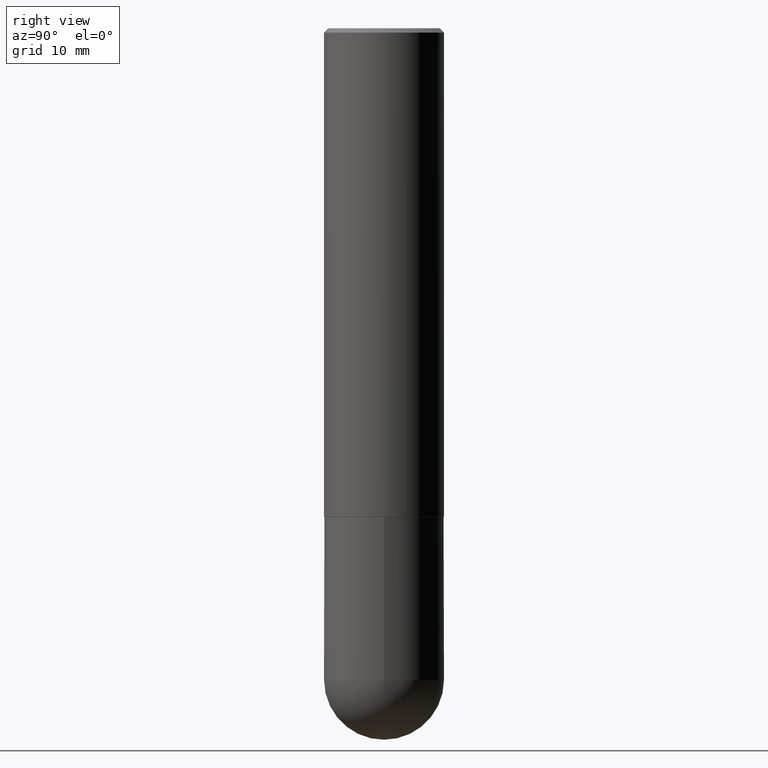
[diagram: clean part render]
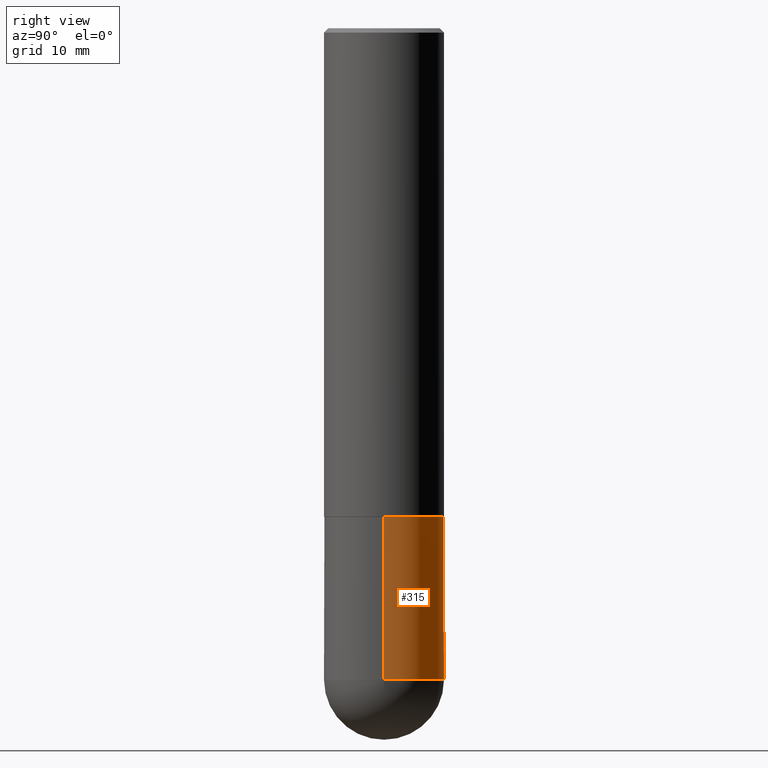
[diagram: same view with one face highlighted and labeled with its STEP entity id]
A machine part, right view. The second image highlights one B-rep face of the part: STEP entity #315.
In plain terms, the highlighted cylindrical surface (partial cylindrical patch) has radius 7.0002 mm, axis along (-0, 0, 1).
Its self-contained STEP definition (entity closure, byte-faithful):
#3 = EDGE_CURVE ( 'NONE', #207, #375, #410, .T. ) ;
#11 = DIRECTION ( 'NONE',  ( 1.000000000000000000, -6.982962677686264344E-15, 0.000000000000000000 ) ) ;
#15 = VERTEX_POINT ( 'NONE', #307 ) ;
#17 = DIRECTION ( 'NONE',  ( -2.445468806185136877E-29, 3.491481338843145188E-15, 1.000000000000000000 ) ) ;
#19 = CIRCLE ( 'NONE', #166, 0.2756000000000000116 ) ;
#22 = DIRECTION ( 'NONE',  ( -2.445468806185136877E-29, 3.491481338843145188E-15, 1.000000000000000000 ) ) ;
#33 = CIRCLE ( 'NONE', #176, 0.2756000000000000671 ) ;
#46 = ORIENTED_EDGE ( 'NONE', *, *, #327, .T. ) ;
#47 = CARTESIAN_POINT ( 'NONE',  ( -0.2756000000000000671, 1.958255779754836589E-15, -1.355658510874252287E-29 ) ) ;
#49 = VECTOR ( 'NONE', #17, 39.37007874015748143 ) ;
#77 = VECTOR ( 'NONE', #22, 39.37007874015748143 ) ;
#80 = ORIENTED_EDGE ( 'NONE', *, *, #182, .F. ) ;
#82 = ORIENTED_EDGE ( 'NONE', *, *, #3, .F. ) ;
#86 = DIRECTION ( 'NONE',  ( -2.445468806185136597E-29, 3.491481338843145583E-15, 1.000000000000000000 ) ) ;
#93 = EDGE_CURVE ( 'NONE', #207, #203, #136, .T. ) ;
#95 = AXIS2_PLACEMENT_3D ( 'NONE', #366, #86, #209 ) ;
#110 = AXIS2_PLACEMENT_3D ( 'NONE', #252, #221, #311 ) ;
#118 = ORIENTED_EDGE ( 'NONE', *, *, #93, .T. ) ;
#136 = CIRCLE ( 'NONE', #110, 0.2756000000000000671 ) ;
#138 = VERTEX_POINT ( 'NONE', #229 ) ;
#166 = AXIS2_PLACEMENT_3D ( 'NONE', #260, #387, #325 ) ;
#175 = LINE ( 'NONE', #47, #77 ) ;
#176 = AXIS2_PLACEMENT_3D ( 'NONE', #189, #270, #11 ) ;
#182 = EDGE_CURVE ( 'NONE', #375, #138, #19, .T. ) ;
#189 = CARTESIAN_POINT ( 'NONE',  ( 7.317087214986547114E-29, -1.044686131395257581E-14, -2.992100000000000204 ) ) ;
#203 = VERTEX_POINT ( 'NONE', #258 ) ;
#207 = VERTEX_POINT ( 'NONE', #257 ) ;
#209 = DIRECTION ( 'NONE',  ( 1.000000000000000000, -6.982962677686267499E-15, 4.876176775795935793E-29 ) ) ;
#221 = DIRECTION ( 'NONE',  ( -2.445468806185136597E-29, 3.491481338843145583E-15, 1.000000000000000000 ) ) ;
#222 = ORIENTED_EDGE ( 'NONE', *, *, #335, .T. ) ;
#229 = CARTESIAN_POINT ( 'NONE',  ( -0.2756000000000000116, -7.182791513470402485E-15, -2.244100000000000428 ) ) ;
#252 = CARTESIAN_POINT ( 'NONE',  ( 7.317087214986547114E-29, -1.044686131395257581E-14, -2.992100000000000204 ) ) ;
#257 = CARTESIAN_POINT ( 'NONE',  ( 0.2756000000000000671, -1.106555180719557718E-14, -2.992100000000000204 ) ) ;
#258 = CARTESIAN_POINT ( 'NONE',  ( 1.924504513970407924E-15, 0.2755999999999895200, -2.992100000000001092 ) ) ;
#260 = CARTESIAN_POINT ( 'NONE',  ( 5.487876547960065873E-29, -7.835233272497903917E-15, -2.244100000000000428 ) ) ;
#267 = FACE_OUTER_BOUND ( 'NONE', #370, .T. ) ;
#270 = DIRECTION ( 'NONE',  ( -2.445468806185136597E-29, 3.491481338843145583E-15, 1.000000000000000000 ) ) ;
#307 = CARTESIAN_POINT ( 'NONE',  ( -0.2756000000000000671, -7.182791513470404062E-15, -2.992100000000000204 ) ) ;
#311 = DIRECTION ( 'NONE',  ( 1.000000000000000000, -6.982962677686264344E-15, 0.000000000000000000 ) ) ;
#312 = CARTESIAN_POINT ( 'NONE',  ( 0.2756000000000000671, -1.924504513970335743E-15, 1.343874319409360268E-29 ) ) ;
#315 = ADVANCED_FACE ( 'NONE', ( #267 ), #395, .T. ) ;
#325 = DIRECTION ( 'NONE',  ( 1.000000000000000000, -6.982962677686269866E-15, 0.000000000000000000 ) ) ;
#327 = EDGE_CURVE ( 'NONE', #203, #15, #33, .T. ) ;
#335 = EDGE_CURVE ( 'NONE', #15, #138, #175, .T. ) ;
#366 = CARTESIAN_POINT ( 'NONE',  ( 0.000000000000000000, 0.000000000000000000, 0.000000000000000000 ) ) ;
#370 = EDGE_LOOP ( 'NONE', ( #46, #222, #80, #82, #118 ) ) ;
#375 = VERTEX_POINT ( 'NONE', #398 ) ;
#387 = DIRECTION ( 'NONE',  ( -2.445468806185136597E-29, 3.491481338843145583E-15, 1.000000000000000000 ) ) ;
#395 = CYLINDRICAL_SURFACE ( 'NONE', #95, 0.2756000000000000671 ) ;
#398 = CARTESIAN_POINT ( 'NONE',  ( 0.2756000000000000116, -9.759737786468238871E-15, -2.244100000000000428 ) ) ;
#410 = LINE ( 'NONE', #312, #49 ) ;